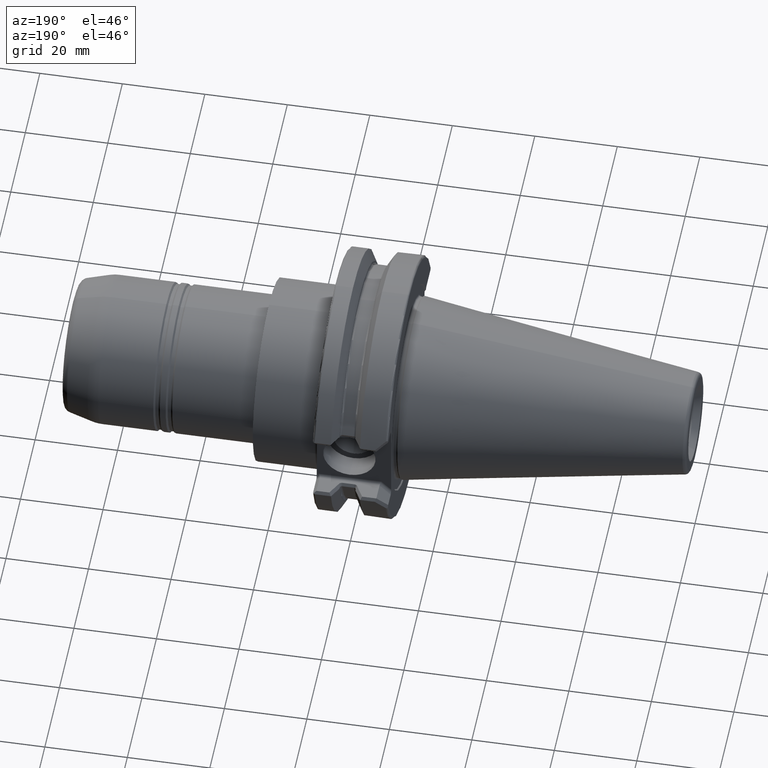
[diagram: clean part render]
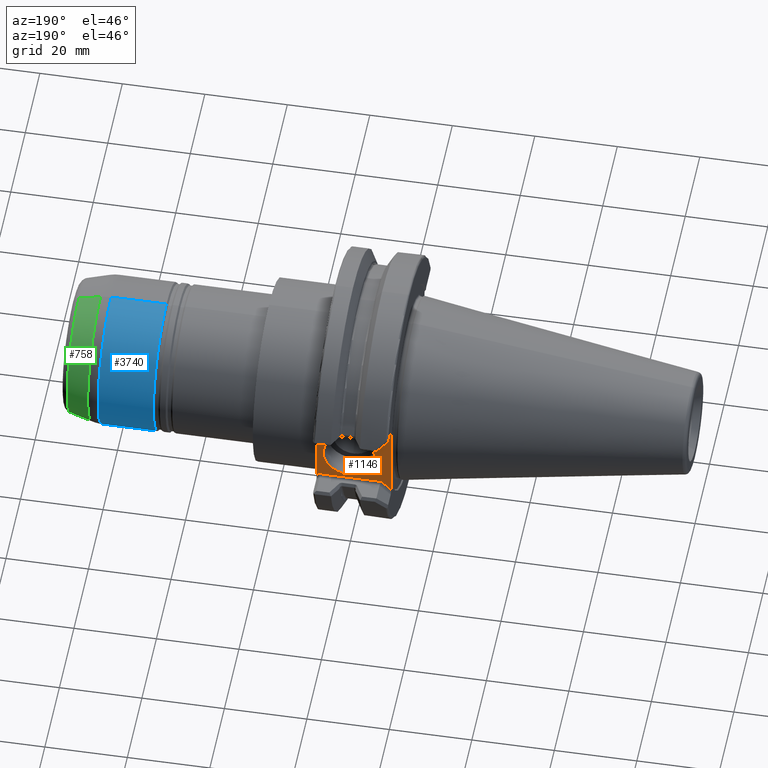
[diagram: same view with three faces highlighted in distinct colors, each labeled with its STEP entity id]
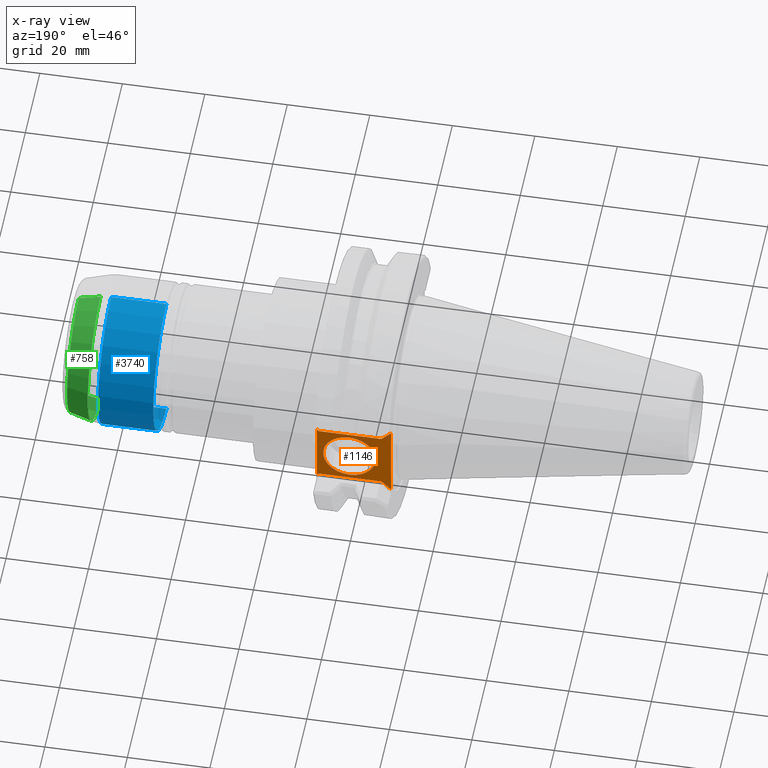
[diagram: x-ray of the same camera — body ghosted, the three highlighted faces saturated]
A machine part, auxiliary view with three faces highlighted in distinct colors.
The next image is the same camera in x-ray (body ghosted, the three faces saturated) — at least one of them is partly hidden behind the body in this view.
Their STEP definitions:

[orange] entity #1146 — the highlighted planar face has unit normal (0, 1, -0).
#5 = DIRECTION ( 'NONE',  ( -0.0000000000000000000, 1.000000000000000000, -0.0000000000000000000 ) ) ;
#30 = DIRECTION ( 'NONE',  ( 0.0000000000000000000, 0.0000000000000000000, 1.000000000000000000 ) ) ;
#122 = DIRECTION ( 'NONE',  ( -0.0000000000000000000, -0.0000000000000000000, -1.000000000000000000 ) ) ;
#168 = EDGE_CURVE ( 'NONE', #2323, #2079, #3137, .T. ) ;
#242 = VECTOR ( 'NONE', #411, 1000.000000000000000 ) ;
#247 = EDGE_CURVE ( 'NONE', #2690, #3619, #524, .T. ) ;
#275 = EDGE_CURVE ( 'NONE', #3288, #2323, #3007, .T. ) ;
#291 = DIRECTION ( 'NONE',  ( -1.000000000000000000, 0.0000000000000000000, 1.130113013665671200E-016 ) ) ;
#336 = EDGE_CURVE ( 'NONE', #3001, #1831, #3298, .T. ) ;
#381 = CARTESIAN_POINT ( 'NONE',  ( 79.38000000000001000, 25.02000000000000000, -6.349999999999994300 ) ) ;
#399 = VECTOR ( 'NONE', #935, 1000.000000000000000 ) ;
#409 = PLANE ( 'NONE',  #1525 ) ;
#411 = DIRECTION ( 'NONE',  ( -0.7071067811865462400, 0.0000000000000000000, -0.7071067811865489100 ) ) ;
#467 = LINE ( 'NONE', #727, #1896 ) ;
#487 = CARTESIAN_POINT ( 'NONE',  ( 87.30000000000001100, 25.02000000000000000, 7.772369265471709800 ) ) ;
#524 = CIRCLE ( 'NONE', #4189, 6.349999999999994300 ) ;
#597 = VECTOR ( 'NONE', #3312, 1000.000000000000000 ) ;
#648 = LINE ( 'NONE', #4058, #399 ) ;
#727 = CARTESIAN_POINT ( 'NONE',  ( 87.83881536726416100, 25.02000000000000000, 8.311184632735852100 ) ) ;
#732 = CIRCLE ( 'NONE', #4411, 6.349999999999994300 ) ;
#788 = VERTEX_POINT ( 'NONE', #487 ) ;
#881 = EDGE_CURVE ( 'NONE', #2079, #3001, #648, .T. ) ;
#935 = DIRECTION ( 'NONE',  ( -0.0000000000000000000, -0.0000000000000000000, 1.000000000000000000 ) ) ;
#946 = CARTESIAN_POINT ( 'NONE',  ( 69.25000000000000000, 25.02000000000000000, -9.672369265471706600 ) ) ;
#1006 = VERTEX_POINT ( 'NONE', #4577 ) ;
#1073 = CARTESIAN_POINT ( 'NONE',  ( 79.38000000000001000, 25.02000000000000000, 0.0000000000000000000 ) ) ;
#1079 = CARTESIAN_POINT ( 'NONE',  ( 87.30000000000001100, 25.02000000000000000, -7.772369265471708900 ) ) ;
#1138 = ORIENTED_EDGE ( 'NONE', *, *, #4486, .T. ) ;
#1146 = ADVANCED_FACE ( 'NONE', ( #2680, #2934 ), #409, .T. ) ;
#1210 = VECTOR ( 'NONE', #1392, 1000.000000000000000 ) ;
#1262 = DIRECTION ( 'NONE',  ( -0.7071067811865513500, 0.0000000000000000000, 0.7071067811865436900 ) ) ;
#1266 = ORIENTED_EDGE ( 'NONE', *, *, #168, .T. ) ;
#1307 = CARTESIAN_POINT ( 'NONE',  ( 87.30000000000001100, 25.02000000000000000, -8.050000000000000700 ) ) ;
#1392 = DIRECTION ( 'NONE',  ( 0.7071067811865462400, -0.0000000000000000000, -0.7071067811865489100 ) ) ;
#1441 = CARTESIAN_POINT ( 'NONE',  ( 69.25000000000000000, 25.02000000000000000, 9.672369265471708400 ) ) ;
#1452 = ORIENTED_EDGE ( 'NONE', *, *, #3814, .T. ) ;
#1457 = LINE ( 'NONE', #4000, #3179 ) ;
#1475 = DIRECTION ( 'NONE',  ( 0.0000000000000000000, 0.0000000000000000000, 1.000000000000000000 ) ) ;
#1515 = CARTESIAN_POINT ( 'NONE',  ( 79.38000000000001000, 25.02000000000000000, 6.349999999999994300 ) ) ;
#1525 = AXIS2_PLACEMENT_3D ( 'NONE', #4720, #2387, #30 ) ;
#1584 = ORIENTED_EDGE ( 'NONE', *, *, #4917, .T. ) ;
#1713 = ORIENTED_EDGE ( 'NONE', *, *, #3170, .F. ) ;
#1831 = VERTEX_POINT ( 'NONE', #2270 ) ;
#1868 = CARTESIAN_POINT ( 'NONE',  ( 71.95000000000000300, 25.02000000000000000, -7.287999999999998500 ) ) ;
#1896 = VECTOR ( 'NONE', #3866, 1000.000000000000000 ) ;
#2041 = EDGE_CURVE ( 'NONE', #788, #2271, #4246, .T. ) ;
#2079 = VERTEX_POINT ( 'NONE', #946 ) ;
#2270 = CARTESIAN_POINT ( 'NONE',  ( 71.63436926547170500, 25.02000000000000000, 7.288000000000001100 ) ) ;
#2271 = VERTEX_POINT ( 'NONE', #1079 ) ;
#2323 = VERTEX_POINT ( 'NONE', #4239 ) ;
#2346 = CARTESIAN_POINT ( 'NONE',  ( 79.38000000000001000, 25.02000000000000000, 0.0000000000000000000 ) ) ;
#2371 = VECTOR ( 'NONE', #291, 1000.000000000000000 ) ;
#2387 = DIRECTION ( 'NONE',  ( 0.0000000000000000000, 1.000000000000000000, -0.0000000000000000000 ) ) ;
#2422 = VECTOR ( 'NONE', #122, 1000.000000000000000 ) ;
#2461 = CARTESIAN_POINT ( 'NONE',  ( 86.81563073452829800, 25.02000000000000000, -7.288000000000000300 ) ) ;
#2680 = FACE_OUTER_BOUND ( 'NONE', #2895, .T. ) ;
#2690 = VERTEX_POINT ( 'NONE', #1515 ) ;
#2756 = DIRECTION ( 'NONE',  ( 0.0000000000000000000, 0.0000000000000000000, 1.000000000000000000 ) ) ;
#2763 = ORIENTED_EDGE ( 'NONE', *, *, #336, .T. ) ;
#2895 = EDGE_LOOP ( 'NONE', ( #1452, #1138, #4130, #1584, #3787, #1266, #4701, #2763 ) ) ;
#2919 = CARTESIAN_POINT ( 'NONE',  ( 86.50000000000001400, 25.02000000000000000, 7.288000000000002000 ) ) ;
#2934 = FACE_BOUND ( 'NONE', #3718, .T. ) ;
#2976 = CARTESIAN_POINT ( 'NONE',  ( 71.41118463273585300, 25.02000000000000000, 7.511184632735854900 ) ) ;
#3001 = VERTEX_POINT ( 'NONE', #1441 ) ;
#3007 = LINE ( 'NONE', #1868, #2371 ) ;
#3137 = LINE ( 'NONE', #3163, #242 ) ;
#3163 = CARTESIAN_POINT ( 'NONE',  ( 68.71118463273586500, 25.02000000000000000, -10.21118463273585800 ) ) ;
#3170 = EDGE_CURVE ( 'NONE', #3619, #2690, #732, .T. ) ;
#3179 = VECTOR ( 'NONE', #1262, 1000.000000000000000 ) ;
#3288 = VERTEX_POINT ( 'NONE', #2461 ) ;
#3298 = LINE ( 'NONE', #2976, #1210 ) ;
#3312 = DIRECTION ( 'NONE',  ( 1.000000000000000000, 0.0000000000000000000, 2.260226027331342300E-016 ) ) ;
#3619 = VERTEX_POINT ( 'NONE', #381 ) ;
#3718 = EDGE_LOOP ( 'NONE', ( #4319, #1713 ) ) ;
#3729 = LINE ( 'NONE', #2919, #597 ) ;
#3787 = ORIENTED_EDGE ( 'NONE', *, *, #275, .T. ) ;
#3814 = EDGE_CURVE ( 'NONE', #1831, #1006, #3729, .T. ) ;
#3815 = DIRECTION ( 'NONE',  ( -0.0000000000000000000, 1.000000000000000000, -0.0000000000000000000 ) ) ;
#3866 = DIRECTION ( 'NONE',  ( 0.7071067811865513500, 0.0000000000000000000, 0.7071067811865436900 ) ) ;
#4000 = CARTESIAN_POINT ( 'NONE',  ( 87.03881536726414900, 25.02000000000000000, -7.511184632735850500 ) ) ;
#4058 = CARTESIAN_POINT ( 'NONE',  ( 69.25000000000000000, 25.02000000000000000, 10.75000000000000200 ) ) ;
#4130 = ORIENTED_EDGE ( 'NONE', *, *, #2041, .T. ) ;
#4189 = AXIS2_PLACEMENT_3D ( 'NONE', #1073, #3815, #1475 ) ;
#4239 = CARTESIAN_POINT ( 'NONE',  ( 71.63436926547170500, 25.02000000000000000, -7.287999999999998500 ) ) ;
#4246 = LINE ( 'NONE', #1307, #2422 ) ;
#4319 = ORIENTED_EDGE ( 'NONE', *, *, #247, .F. ) ;
#4411 = AXIS2_PLACEMENT_3D ( 'NONE', #2346, #5, #2756 ) ;
#4486 = EDGE_CURVE ( 'NONE', #1006, #788, #467, .T. ) ;
#4577 = CARTESIAN_POINT ( 'NONE',  ( 86.81563073452829800, 25.02000000000000000, 7.288000000000002000 ) ) ;
#4701 = ORIENTED_EDGE ( 'NONE', *, *, #881, .T. ) ;
#4720 = CARTESIAN_POINT ( 'NONE',  ( 79.99999999999997200, 25.02000000000000000, 0.0000000000000000000 ) ) ;
#4917 = EDGE_CURVE ( 'NONE', #2271, #3288, #1457, .T. ) ;

[blue] entity #3740 — the highlighted cylindrical surface (partial cylindrical patch) has radius 18 mm, axis along (-1, -0, -0).
#106 = CARTESIAN_POINT ( 'NONE',  ( 141.5334750199998300, 0.0000000000000000000, 0.0000000000000000000 ) ) ;
#182 = CARTESIAN_POINT ( 'NONE',  ( 128.1499999999998100, 0.0000000000000000000, 18.00000000000001100 ) ) ;
#306 = LINE ( 'NONE', #3110, #1339 ) ;
#404 = CARTESIAN_POINT ( 'NONE',  ( 141.5334750199998300, 0.0000000000000000000, 18.00000000000001400 ) ) ;
#498 = DIRECTION ( 'NONE',  ( 0.0000000000000000000, 0.0000000000000000000, 1.000000000000000000 ) ) ;
#594 = DIRECTION ( 'NONE',  ( -1.000000000000000000, -0.0000000000000000000, -0.0000000000000000000 ) ) ;
#724 = CYLINDRICAL_SURFACE ( 'NONE', #1767, 18.00000000000001100 ) ;
#765 = VECTOR ( 'NONE', #2714, 1000.000000000000000 ) ;
#776 = AXIS2_PLACEMENT_3D ( 'NONE', #2972, #594, #3343 ) ;
#848 = FACE_OUTER_BOUND ( 'NONE', #2543, .T. ) ;
#1339 = VECTOR ( 'NONE', #3507, 1000.000000000000000 ) ;
#1445 = ORIENTED_EDGE ( 'NONE', *, *, #3587, .F. ) ;
#1481 = EDGE_CURVE ( 'NONE', #1632, #4587, #3891, .T. ) ;
#1587 = CIRCLE ( 'NONE', #2920, 18.00000000000001400 ) ;
#1632 = VERTEX_POINT ( 'NONE', #2520 ) ;
#1767 = AXIS2_PLACEMENT_3D ( 'NONE', #3999, #3225, #4786 ) ;
#2147 = EDGE_CURVE ( 'NONE', #3854, #4587, #3885, .T. ) ;
#2299 = CARTESIAN_POINT ( 'NONE',  ( 103.3000000000000000, 2.204364238465237000E-015, -18.00000000000001100 ) ) ;
#2350 = CARTESIAN_POINT ( 'NONE',  ( 128.1499999999998100, 2.204364238465237000E-015, -18.00000000000001100 ) ) ;
#2520 = CARTESIAN_POINT ( 'NONE',  ( 141.5334750199998300, 2.204364238465237000E-015, -18.00000000000001400 ) ) ;
#2523 = ORIENTED_EDGE ( 'NONE', *, *, #2147, .F. ) ;
#2543 = EDGE_LOOP ( 'NONE', ( #4305, #3281, #2523, #1445 ) ) ;
#2714 = DIRECTION ( 'NONE',  ( -1.000000000000000000, -0.0000000000000000000, -0.0000000000000000000 ) ) ;
#2867 = DIRECTION ( 'NONE',  ( -1.000000000000000000, -0.0000000000000000000, -0.0000000000000000000 ) ) ;
#2920 = AXIS2_PLACEMENT_3D ( 'NONE', #106, #2867, #498 ) ;
#2972 = CARTESIAN_POINT ( 'NONE',  ( 128.1499999999998100, 0.0000000000000000000, 0.0000000000000000000 ) ) ;
#3110 = CARTESIAN_POINT ( 'NONE',  ( 103.3000000000000000, 0.0000000000000000000, 18.00000000000001100 ) ) ;
#3225 = DIRECTION ( 'NONE',  ( -1.000000000000000000, -0.0000000000000000000, -0.0000000000000000000 ) ) ;
#3281 = ORIENTED_EDGE ( 'NONE', *, *, #1481, .T. ) ;
#3343 = DIRECTION ( 'NONE',  ( 0.0000000000000000000, 0.0000000000000000000, 1.000000000000000000 ) ) ;
#3507 = DIRECTION ( 'NONE',  ( -1.000000000000000000, -0.0000000000000000000, -0.0000000000000000000 ) ) ;
#3587 = EDGE_CURVE ( 'NONE', #3643, #3854, #306, .T. ) ;
#3643 = VERTEX_POINT ( 'NONE', #404 ) ;
#3740 = ADVANCED_FACE ( 'NONE', ( #848 ), #724, .T. ) ;
#3854 = VERTEX_POINT ( 'NONE', #182 ) ;
#3885 = CIRCLE ( 'NONE', #776, 18.00000000000001100 ) ;
#3891 = LINE ( 'NONE', #2299, #765 ) ;
#3999 = CARTESIAN_POINT ( 'NONE',  ( 103.3000000000000000, 0.0000000000000000000, 0.0000000000000000000 ) ) ;
#4156 = EDGE_CURVE ( 'NONE', #3643, #1632, #1587, .T. ) ;
#4305 = ORIENTED_EDGE ( 'NONE', *, *, #4156, .T. ) ;
#4587 = VERTEX_POINT ( 'NONE', #2350 ) ;
#4786 = DIRECTION ( 'NONE',  ( 0.0000000000000000000, 0.0000000000000000000, 1.000000000000000000 ) ) ;

[green] entity #758 — the highlighted conical surface has half-angle 15 deg.
#47 = LINE ( 'NONE', #3724, #965 ) ;
#188 = ORIENTED_EDGE ( 'NONE', *, *, #3050, .F. ) ;
#300 = DIRECTION ( 'NONE',  ( -1.000000000000000000, -0.0000000000000000000, -0.0000000000000000000 ) ) ;
#380 = DIRECTION ( 'NONE',  ( -1.000000000000000000, -0.0000000000000000000, -0.0000000000000000000 ) ) ;
#500 = CARTESIAN_POINT ( 'NONE',  ( 144.1216654710250400, 0.0000000000000000000, 17.65925826289069200 ) ) ;
#551 = DIRECTION ( 'NONE',  ( -0.9659258264676433600, 0.0000000000000000000, 0.2588190444360694000 ) ) ;
#620 = CARTESIAN_POINT ( 'NONE',  ( 149.3676380888719800, 0.0000000000000000000, 16.25360414030219800 ) ) ;
#653 = EDGE_CURVE ( 'NONE', #2498, #2015, #1261, .T. ) ;
#758 = ADVANCED_FACE ( 'NONE', ( #1948 ), #4813, .T. ) ;
#965 = VECTOR ( 'NONE', #4479, 1000.000000000000000 ) ;
#1261 = CIRCLE ( 'NONE', #1719, 16.25360414030220500 ) ;
#1295 = CARTESIAN_POINT ( 'NONE',  ( 149.3676380888719800, 1.990492428502925500E-015, -16.25360414030219800 ) ) ;
#1719 = AXIS2_PLACEMENT_3D ( 'NONE', #2747, #380, #3147 ) ;
#1948 = FACE_OUTER_BOUND ( 'NONE', #3590, .T. ) ;
#2000 = VERTEX_POINT ( 'NONE', #500 ) ;
#2015 = VERTEX_POINT ( 'NONE', #1295 ) ;
#2325 = AXIS2_PLACEMENT_3D ( 'NONE', #2651, #300, #3052 ) ;
#2430 = CARTESIAN_POINT ( 'NONE',  ( 144.1216654710250400, 0.0000000000000000000, 0.0000000000000000000 ) ) ;
#2498 = VERTEX_POINT ( 'NONE', #620 ) ;
#2651 = CARTESIAN_POINT ( 'NONE',  ( 144.1216654710250400, 0.0000000000000000000, 0.0000000000000000000 ) ) ;
#2747 = CARTESIAN_POINT ( 'NONE',  ( 149.3676380888719800, 0.0000000000000000000, 0.0000000000000000000 ) ) ;
#2916 = CARTESIAN_POINT ( 'NONE',  ( 144.1216654710250400, 0.0000000000000000000, 17.65925826289069200 ) ) ;
#3050 = EDGE_CURVE ( 'NONE', #2000, #4757, #4221, .T. ) ;
#3052 = DIRECTION ( 'NONE',  ( 0.0000000000000000000, 0.0000000000000000000, 1.000000000000000000 ) ) ;
#3147 = DIRECTION ( 'NONE',  ( 0.0000000000000000000, 0.0000000000000000000, 1.000000000000000000 ) ) ;
#3191 = ORIENTED_EDGE ( 'NONE', *, *, #4318, .T. ) ;
#3428 = VECTOR ( 'NONE', #551, 1000.000000000000000 ) ;
#3590 = EDGE_LOOP ( 'NONE', ( #5006, #3191, #188, #4089 ) ) ;
#3724 = CARTESIAN_POINT ( 'NONE',  ( 144.1216654710250400, 2.162635410696553500E-015, -17.65925826289069200 ) ) ;
#3997 = DIRECTION ( 'NONE',  ( -1.000000000000000000, -0.0000000000000000000, -0.0000000000000000000 ) ) ;
#4065 = AXIS2_PLACEMENT_3D ( 'NONE', #2430, #3997, #4772 ) ;
#4089 = ORIENTED_EDGE ( 'NONE', *, *, #4251, .F. ) ;
#4221 = CIRCLE ( 'NONE', #2325, 17.65925826289069200 ) ;
#4251 = EDGE_CURVE ( 'NONE', #2498, #2000, #4331, .T. ) ;
#4318 = EDGE_CURVE ( 'NONE', #2015, #4757, #47, .T. ) ;
#4331 = LINE ( 'NONE', #2916, #3428 ) ;
#4479 = DIRECTION ( 'NONE',  ( -0.9659258264676433600, 3.169619143270089800E-017, -0.2588190444360694000 ) ) ;
#4636 = CARTESIAN_POINT ( 'NONE',  ( 144.1216654710250400, 2.162635410696553500E-015, -17.65925826289069200 ) ) ;
#4757 = VERTEX_POINT ( 'NONE', #4636 ) ;
#4772 = DIRECTION ( 'NONE',  ( 0.0000000000000000000, 0.0000000000000000000, 1.000000000000000000 ) ) ;
#4813 = CONICAL_SURFACE ( 'NONE', #4065, 17.65925826289069200, 0.2617993871091882100 ) ;
#5006 = ORIENTED_EDGE ( 'NONE', *, *, #653, .T. ) ;